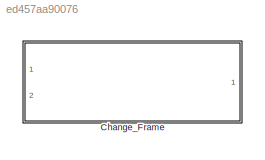
MODEL slx_ed457aa90076
KIND library
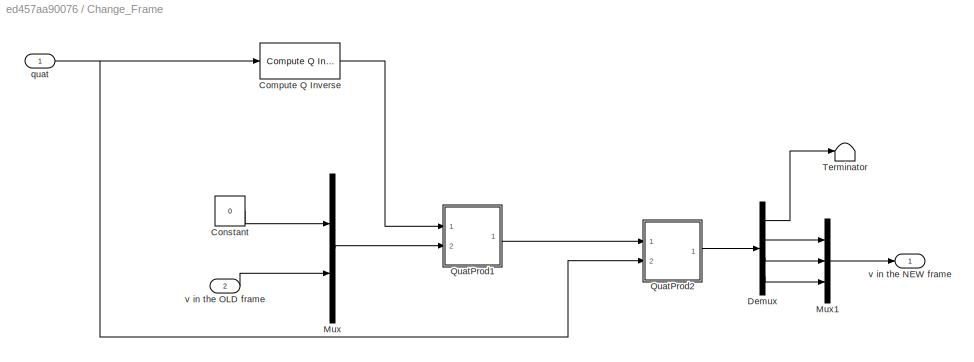
BLOCK [SubSystem] Change_Frame
  Ports = [2, 1]
  RequestExecContextInheritance = off
BLOCK [Reference] Change_Frame/Compute Q Inverse  REF=Qinverse/Compute Q Inverse
  Ports = [1, 1]
  SourceBlock = Qinverse/Compute Q Inverse
  SourceType = SubSystem
BLOCK [Constant] Change_Frame/Constant
  Value = 0
BLOCK [Demux] Change_Frame/Demux
  DisplayOption = bar
  Ports = [1, 4]
BLOCK [Mux] Change_Frame/Mux
  DisplayOption = bar
  Inputs = 2
  Ports = [2, 1]
BLOCK [Mux] Change_Frame/Mux1
  DisplayOption = bar
  Inputs = 3
  Ports = [3, 1]
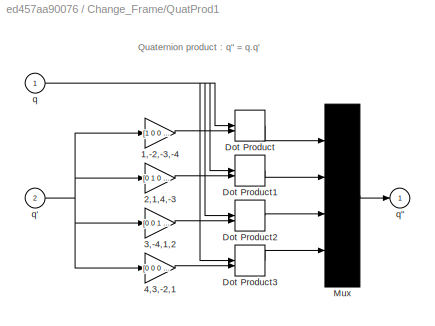
BLOCK [SubSystem] Change_Frame/QuatProd1
  Ports = [2, 1]
  RTWFcnNameOpts = Use subsystem name
  RTWFileNameOpts = Use subsystem name
  RTWSystemCode = Reusable function
  RequestExecContextInheritance = off
  TreatAsAtomicUnit = on
BLOCK [Gain] Change_Frame/QuatProd1/1,-2,-3,-4
  Gain = [1 0 0 0;0 -1 0 0;0 0 -1 0;0 0 0 -1]
  Multiplication = Matrix(K*u) (u vector)
BLOCK [Gain] Change_Frame/QuatProd1/2,1,4,-3
  Gain = [0 1 0 0 ; 1 0 0 0 ; 0 0 0 1 ; 0 0 -1 0]
  Multiplication = Matrix(K*u) (u vector)
BLOCK [Gain] Change_Frame/QuatProd1/3,-4,1,2
  Gain = [0 0 1 0 ; 0 0 0 -1 ; 1 0 0 0 ; 0 1 0 0]
  Multiplication = Matrix(K*u) (u vector)
BLOCK [Gain] Change_Frame/QuatProd1/4,3,-2,1
  Gain = [0 0 0 1;0 0 1 0 ; 0 -1 0 0 ; 1 0 0 0]
  Multiplication = Matrix(K*u) (u vector)
BLOCK [DotProduct] Change_Frame/QuatProd1/Dot Product
  OutDataTypeStr = Inherit: Inherit via internal rule
BLOCK [DotProduct] Change_Frame/QuatProd1/Dot Product1
  OutDataTypeStr = Inherit: Inherit via internal rule
BLOCK [DotProduct] Change_Frame/QuatProd1/Dot Product2
  OutDataTypeStr = Inherit: Inherit via internal rule
BLOCK [DotProduct] Change_Frame/QuatProd1/Dot Product3
  OutDataTypeStr = Inherit: Inherit via internal rule
BLOCK [Mux] Change_Frame/QuatProd1/Mux
  Ports = [4, 1]
BLOCK [Inport] Change_Frame/QuatProd1/q
  IconDisplay = Port number
  OutDataTypeStr = double
  PortDimensions = 4
BLOCK [Outport] Change_Frame/QuatProd1/q"
  IconDisplay = Port number
  InitialOutput = 0
  OutDataTypeStr = double
  PortDimensions = 4
BLOCK [Inport] Change_Frame/QuatProd1/q'
  IconDisplay = Port number
  OutDataTypeStr = double
  Port = 2
  PortDimensions = 4
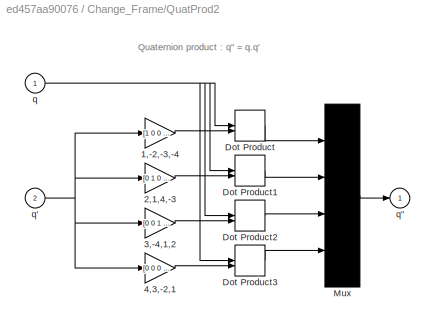
BLOCK [SubSystem] Change_Frame/QuatProd2
  Ports = [2, 1]
  RTWFcnNameOpts = Use subsystem name
  RTWFileNameOpts = Use subsystem name
  RTWSystemCode = Reusable function
  RequestExecContextInheritance = off
  TreatAsAtomicUnit = on
BLOCK [Gain] Change_Frame/QuatProd2/1,-2,-3,-4
  Gain = [1 0 0 0;0 -1 0 0;0 0 -1 0;0 0 0 -1]
  Multiplication = Matrix(K*u) (u vector)
BLOCK [Gain] Change_Frame/QuatProd2/2,1,4,-3
  Gain = [0 1 0 0 ; 1 0 0 0 ; 0 0 0 1 ; 0 0 -1 0]
  Multiplication = Matrix(K*u) (u vector)
BLOCK [Gain] Change_Frame/QuatProd2/3,-4,1,2
  Gain = [0 0 1 0 ; 0 0 0 -1 ; 1 0 0 0 ; 0 1 0 0]
  Multiplication = Matrix(K*u) (u vector)
BLOCK [Gain] Change_Frame/QuatProd2/4,3,-2,1
  Gain = [0 0 0 1;0 0 1 0 ; 0 -1 0 0 ; 1 0 0 0]
  Multiplication = Matrix(K*u) (u vector)
BLOCK [DotProduct] Change_Frame/QuatProd2/Dot Product
  OutDataTypeStr = Inherit: Inherit via internal rule
BLOCK [DotProduct] Change_Frame/QuatProd2/Dot Product1
  OutDataTypeStr = Inherit: Inherit via internal rule
BLOCK [DotProduct] Change_Frame/QuatProd2/Dot Product2
  OutDataTypeStr = Inherit: Inherit via internal rule
BLOCK [DotProduct] Change_Frame/QuatProd2/Dot Product3
  OutDataTypeStr = Inherit: Inherit via internal rule
BLOCK [Mux] Change_Frame/QuatProd2/Mux
  Ports = [4, 1]
BLOCK [Inport] Change_Frame/QuatProd2/q
  IconDisplay = Port number
  OutDataTypeStr = double
  PortDimensions = 4
BLOCK [Outport] Change_Frame/QuatProd2/q"
  IconDisplay = Port number
  InitialOutput = 0
  OutDataTypeStr = double
  PortDimensions = 4
BLOCK [Inport] Change_Frame/QuatProd2/q'
  IconDisplay = Port number
  OutDataTypeStr = double
  Port = 2
  PortDimensions = 4
BLOCK [Terminator] Change_Frame/Terminator
BLOCK [Inport] Change_Frame/quat
  IconDisplay = Port number
BLOCK [Outport] Change_Frame/v in the NEW frame
  IconDisplay = Port number
BLOCK [Inport] Change_Frame/v in the OLD frame
  IconDisplay = Port number
  Port = 2
ANNOTATION Change_Frame/QuatProd1: Quaternion product : q" = q.q'
ANNOTATION Change_Frame/QuatProd2: Quaternion product : q" = q.q'
LINE Change_Frame/Compute Q Inverse:1 -> Change_Frame/QuatProd1:1
LINE Change_Frame/Constant:1 -> Change_Frame/Mux:1
LINE Change_Frame/Demux:1 -> Change_Frame/Terminator:1
LINE Change_Frame/Demux:2 -> Change_Frame/Mux1:1
LINE Change_Frame/Demux:3 -> Change_Frame/Mux1:2
LINE Change_Frame/Demux:4 -> Change_Frame/Mux1:3
LINE Change_Frame/Mux1:1 -> Change_Frame/v in the NEW frame:1
LINE Change_Frame/Mux:1 -> Change_Frame/QuatProd1:2
LINE Change_Frame/QuatProd1/1,-2,-3,-4:1 -> Change_Frame/QuatProd1/Dot Product:2
LINE Change_Frame/QuatProd1/2,1,4,-3:1 -> Change_Frame/QuatProd1/Dot Product1:2
LINE Change_Frame/QuatProd1/3,-4,1,2:1 -> Change_Frame/QuatProd1/Dot Product2:2
LINE Change_Frame/QuatProd1/4,3,-2,1:1 -> Change_Frame/QuatProd1/Dot Product3:2
LINE Change_Frame/QuatProd1/Dot Product1:1 -> Change_Frame/QuatProd1/Mux:2
LINE Change_Frame/QuatProd1/Dot Product2:1 -> Change_Frame/QuatProd1/Mux:3
LINE Change_Frame/QuatProd1/Dot Product3:1 -> Change_Frame/QuatProd1/Mux:4
LINE Change_Frame/QuatProd1/Dot Product:1 -> Change_Frame/QuatProd1/Mux:1
LINE Change_Frame/QuatProd1/Mux:1 -> Change_Frame/QuatProd1/q":1
NET Change_Frame/QuatProd1/q':1 -> Change_Frame/QuatProd1/1,-2,-3,-4:1, Change_Frame/QuatProd1/2,1,4,-3:1, Change_Frame/QuatProd1/3,-4,1,2:1, Change_Frame/QuatProd1/4,3,-2,1:1
NET Change_Frame/QuatProd1/q:1 -> Change_Frame/QuatProd1/Dot Product1:1, Change_Frame/QuatProd1/Dot Product2:1, Change_Frame/QuatProd1/Dot Product3:1, Change_Frame/QuatProd1/Dot Product:1
LINE Change_Frame/QuatProd1:1 -> Change_Frame/QuatProd2:1
LINE Change_Frame/QuatProd2/1,-2,-3,-4:1 -> Change_Frame/QuatProd2/Dot Product:2
LINE Change_Frame/QuatProd2/2,1,4,-3:1 -> Change_Frame/QuatProd2/Dot Product1:2
LINE Change_Frame/QuatProd2/3,-4,1,2:1 -> Change_Frame/QuatProd2/Dot Product2:2
LINE Change_Frame/QuatProd2/4,3,-2,1:1 -> Change_Frame/QuatProd2/Dot Product3:2
LINE Change_Frame/QuatProd2/Dot Product1:1 -> Change_Frame/QuatProd2/Mux:2
LINE Change_Frame/QuatProd2/Dot Product2:1 -> Change_Frame/QuatProd2/Mux:3
LINE Change_Frame/QuatProd2/Dot Product3:1 -> Change_Frame/QuatProd2/Mux:4
LINE Change_Frame/QuatProd2/Dot Product:1 -> Change_Frame/QuatProd2/Mux:1
LINE Change_Frame/QuatProd2/Mux:1 -> Change_Frame/QuatProd2/q":1
NET Change_Frame/QuatProd2/q':1 -> Change_Frame/QuatProd2/1,-2,-3,-4:1, Change_Frame/QuatProd2/2,1,4,-3:1, Change_Frame/QuatProd2/3,-4,1,2:1, Change_Frame/QuatProd2/4,3,-2,1:1
NET Change_Frame/QuatProd2/q:1 -> Change_Frame/QuatProd2/Dot Product1:1, Change_Frame/QuatProd2/Dot Product2:1, Change_Frame/QuatProd2/Dot Product3:1, Change_Frame/QuatProd2/Dot Product:1
LINE Change_Frame/QuatProd2:1 -> Change_Frame/Demux:1
NET Change_Frame/quat:1 -> Change_Frame/Compute Q Inverse:1, Change_Frame/QuatProd2:2
LINE Change_Frame/v in the OLD frame:1 -> Change_Frame/Mux:2
note: NET lines group one-source signal fan-out (src -> all destinations, sorted); 1:1 wires keep LINE
